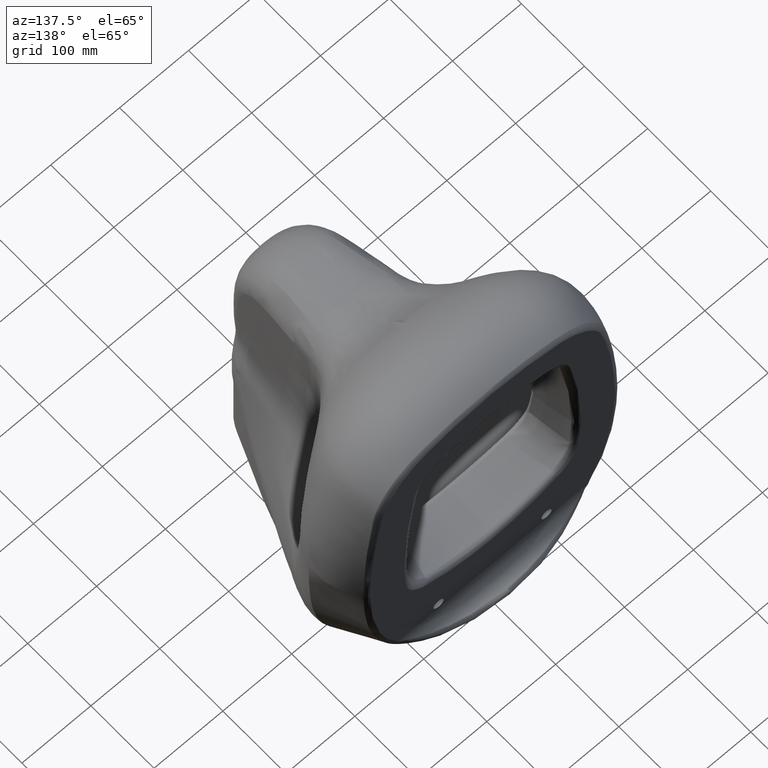
[diagram: clean part render]
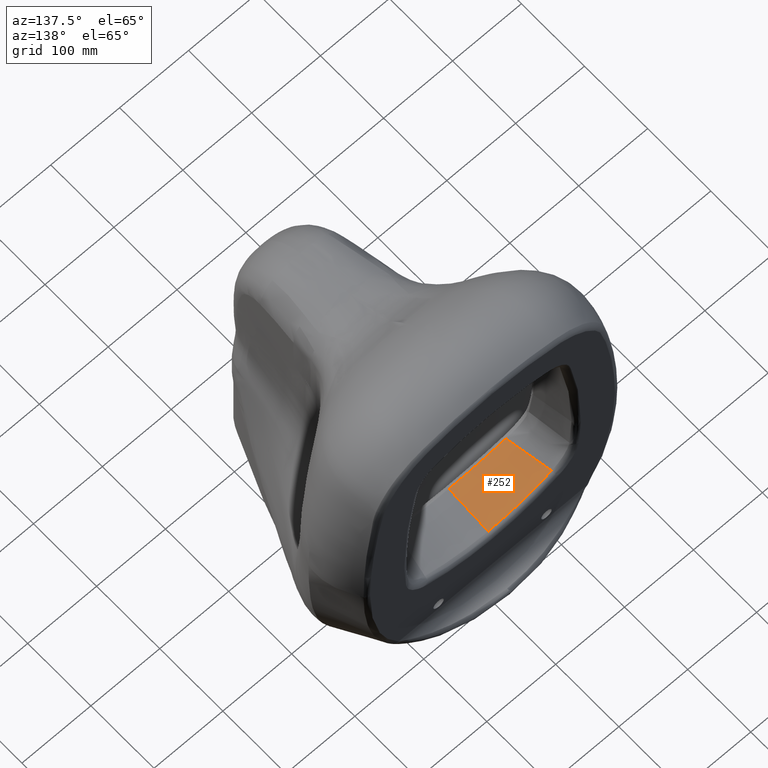
[diagram: same view with one face highlighted and labeled with its STEP entity id]
A machine part, auxiliary view. The second image highlights one B-rep face of the part: STEP entity #252.
In plain terms, the highlighted conical surface has half-angle 8 deg.
Its self-contained STEP definition (entity closure, byte-faithful):
#44=CONICAL_SURFACE('',#3114,220.358442951823,8.);
#58=CIRCLE('',#3113,219.389382491111);
#189=(
BOUNDED_CURVE()
B_SPLINE_CURVE(3,(#10671,#10672,#10673,#10674),.UNSPECIFIED.,.F.,.F.)
B_SPLINE_CURVE_WITH_KNOTS((4,4),(0.,1.),.UNSPECIFIED.)
CURVE()
GEOMETRIC_REPRESENTATION_ITEM()
RATIONAL_B_SPLINE_CURVE((0.999999957820359,0.999999959310517,0.999999960723365,
0.999999962061735))
REPRESENTATION_ITEM('')
);
#252=ADVANCED_FACE('',(#472),#44,.F.);
#472=FACE_OUTER_BOUND('',#621,.T.);
#621=EDGE_LOOP('',(#895,#896,#897,#898));
#895=ORIENTED_EDGE('',*,*,#2271,.T.);
#896=ORIENTED_EDGE('',*,*,#2272,.T.);
#897=ORIENTED_EDGE('',*,*,#2273,.F.);
#898=ORIENTED_EDGE('',*,*,#2259,.T.);
#1874=VERTEX_POINT('',#10008);
#1875=VERTEX_POINT('',#10025);
#1883=VERTEX_POINT('',#10668);
#1884=VERTEX_POINT('',#10670);
#2259=EDGE_CURVE('',#1875,#1874,#2757,.T.);
#2271=EDGE_CURVE('',#1874,#1883,#2767,.T.);
#2272=EDGE_CURVE('',#1883,#1884,#58,.T.);
#2273=EDGE_CURVE('',#1875,#1884,#189,.T.);
#2757=B_SPLINE_CURVE_WITH_KNOTS('',3,(#10009,#10010,#10011,#10012,#10013,
#10014,#10015,#10016,#10017,#10018,#10019,#10020,#10021,#10022,#10023,#10024),
 .UNSPECIFIED.,.F.,.F.,(4,2,2,2,1,1,2,2,4),(0.,0.249999999999999,0.374999999999998,
0.437499999999998,0.468749999999998,0.484374999999998,0.492187499999998,
0.499999999999998,1.),.UNSPECIFIED.);
#2767=B_SPLINE_CURVE_WITH_KNOTS('',3,(#10664,#10665,#10666,#10667),
 .UNSPECIFIED.,.F.,.F.,(4,4),(0.,1.),.UNSPECIFIED.);
#3113=AXIS2_PLACEMENT_3D('',#10669,#3178,#3179);
#3114=AXIS2_PLACEMENT_3D('',#10675,#3180,#3181);
#3178=DIRECTION('',(0.,1.,0.));
#3179=DIRECTION('',(0.,0.,1.));
#3180=DIRECTION('',(0.,1.,0.));
#3181=DIRECTION('',(0.,0.,-1.));
#10008=CARTESIAN_POINT('',(0.,-69.2938836114034,164.851775034088));
#10009=CARTESIAN_POINT('',(-80.2953031812564,-66.3887724071786,180.316345839179));
#10010=CARTESIAN_POINT('',(-73.1568749700875,-66.8675187860643,177.452054172212));
#10011=CARTESIAN_POINT('',(-66.2636654989577,-67.2826720340542,175.132481857572));
#10012=CARTESIAN_POINT('',(-56.4070608128593,-67.8100122096951,172.300337614136));
#10013=CARTESIAN_POINT('',(-53.2015946255821,-67.969893985518,171.464194552557));
#10014=CARTESIAN_POINT('',(-48.5241032923971,-68.1858692251666,170.351298692945));
#10015=CARTESIAN_POINT('',(-46.9866997111417,-68.253886401035,170.003893315364));
#10016=CARTESIAN_POINT('',(-44.7143520172444,-68.3499503088163,169.515627967482));
#10017=CARTESIAN_POINT('',(-43.5866155173989,-68.3964917987016,169.279706777666));
#10018=CARTESIAN_POINT('',(-42.2859114838858,-68.4481818915583,169.018298176725));
#10019=CARTESIAN_POINT('',(-41.7317013371251,-68.469775864495,168.909173122543));
#10020=CARTESIAN_POINT('',(-41.3629491488895,-68.4840476411189,168.837062819795));
#10021=CARTESIAN_POINT('',(-41.2124957822535,-68.4898400645007,168.80780016156));
#10022=CARTESIAN_POINT('',(-27.0934734959141,-69.0288880051955,166.084872447548));
#10023=CARTESIAN_POINT('',(-13.3407122278405,-69.2941381724173,164.851793031673));
#10024=CARTESIAN_POINT('',(-1.72339441030728E-15,-69.2938836114075,164.851775034089));
#10025=CARTESIAN_POINT('',(-80.2953031812563,-66.3887724071794,180.316345839179));
#10664=CARTESIAN_POINT('',(0.,-69.2938836114034,164.851775034088));
#10665=CARTESIAN_POINT('',(0.,-48.4943302280389,161.92858844015));
#10666=CARTESIAN_POINT('',(0.,-27.6947768446744,159.005401846213));
#10667=CARTESIAN_POINT('',(0.,-6.89522346130989,156.082215252276));
#10668=CARTESIAN_POINT('',(-4.98748587858173E-8,-6.89522346130988,156.082215252276));
#10669=CARTESIAN_POINT('',(-0.000280684589390377,-6.89522346130988,375.471597743207));
#10670=CARTESIAN_POINT('',(-92.0092760710566,-6.89522346130988,176.308232844429));
#10671=CARTESIAN_POINT('',(-80.2953096227822,-66.3887732597759,180.316348595543));
#10672=CARTESIAN_POINT('',(-84.2299688305265,-46.5622313348278,178.922156965755));
#10673=CARTESIAN_POINT('',(-88.1328224125869,-26.7307627114475,177.588190064939));
#10674=CARTESIAN_POINT('',(-92.0092821268317,-6.89522433300059,176.308234705158));
#10675=CARTESIAN_POINT('',(-0.000280684589390377,0.,375.471597743207));